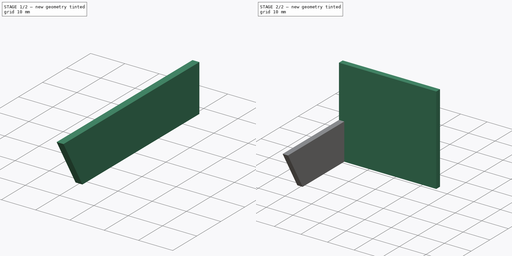
[diagram: build sequence overview — one tinted view per stage of 2, left to right]
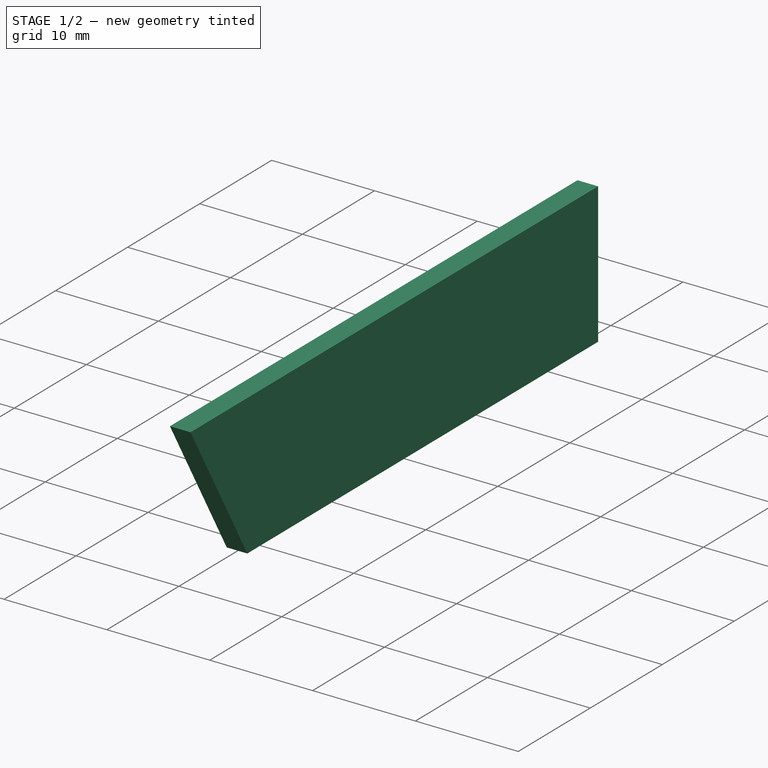
[diagram: stage 1 of 2 — iso view after this stage's code; geometry added in this stage tinted green]
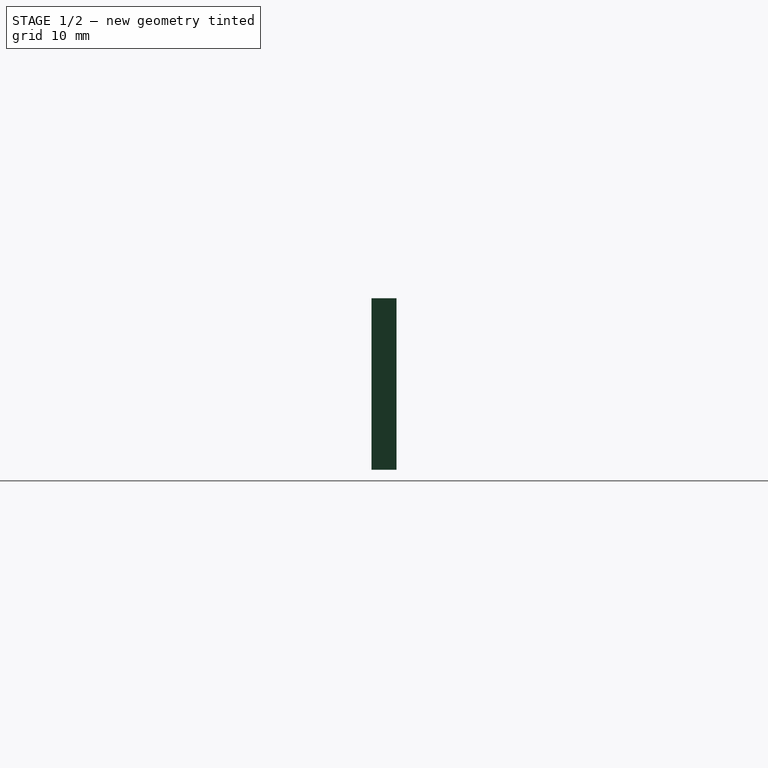
[diagram: stage 1 of 2 — front view after this stage's code; geometry added in this stage tinted green]
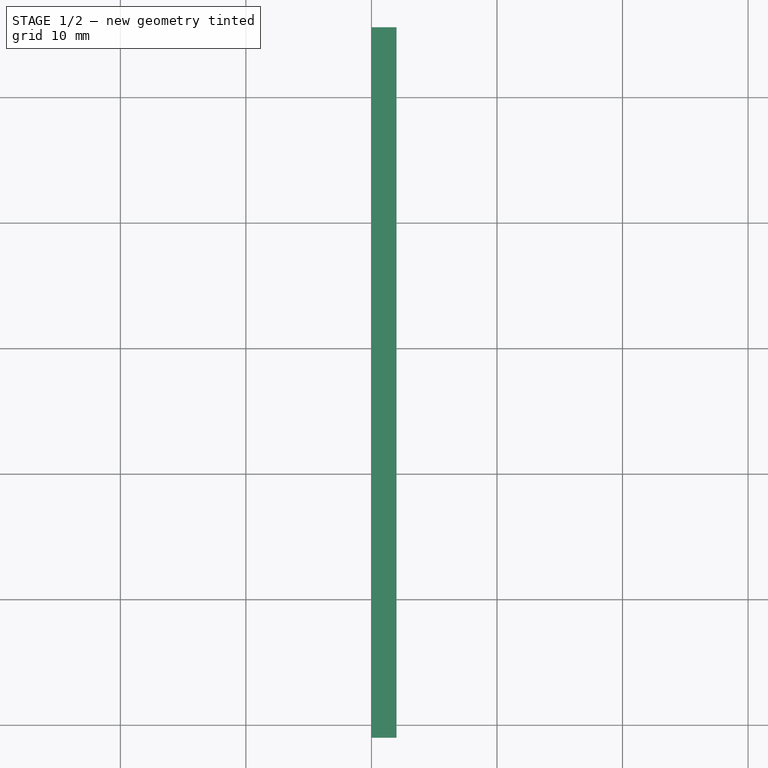
[diagram: stage 1 of 2 — top view after this stage's code; geometry added in this stage tinted green]
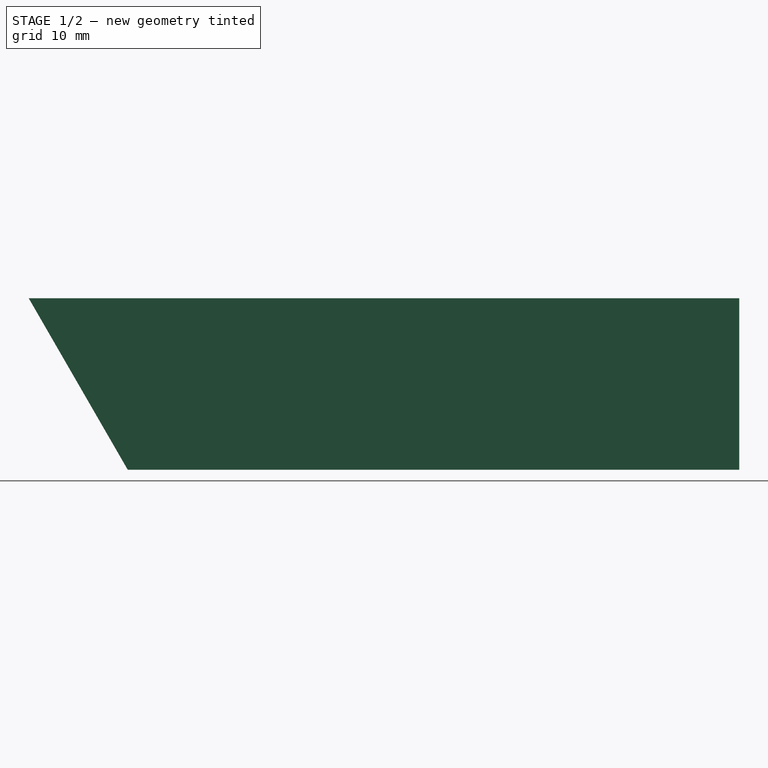
[diagram: stage 1 of 2 — right view after this stage's code; geometry added in this stage tinted green]
FCSTD DOCUMENT  (FreeCAD 1.0R39109 (Git))
Label: 01_Tray_Divider_v4
License: All rights reserved
LicenseURL: https://en.wikipedia.org/wiki/All_rights_reserved
objects: Sketcher::SketchObject×3, PartDesign::Pad×2, PartDesign::Body×1
note: 13 computed .brp shape members not serialized (recipe doc carries the construction recipe); baked Part::Feature solids carry a one-line shape summary decoded from their .brp

FEATURE [Sketcher::SketchObject] Sketch
  ArcFitTolerance = 1e-06
  AttachmentSupport = -> [YZ_Plane001]
  FullyConstrained = true
  MakeInternals = false
  MapMode = 5
  Placement = pos=(0,0,0) rot=(0.57735,0.57735,0.57735;2.0944rad)
  sketch-geometry (4):
    g0: LineSegment StartX=-23.355 StartY=0 StartZ=0 EndX=25.355 EndY=0 EndZ=0
    g1: LineSegment StartX=25.355 StartY=0 StartZ=0 EndX=25.355 EndY=13.6659 EndZ=0
    g2: LineSegment StartX=25.355 StartY=13.6659 StartZ=0 EndX=-31.245 EndY=13.6659 EndZ=0
    g3: LineSegment StartX=-31.245 StartY=13.6659 StartZ=0 EndX=-23.355 EndY=0 EndZ=0
  constraints (12):
    c: Horizontal(g0)
    c: Coincident(g0,g1)
    c: Vertical(g1)
    c: Coincident(g1,g2)
    c: Horizontal(g2)
    c: Coincident(g2,g3)
    c: Coincident(g3,g0)
    c: Distance(g2) = 56.6
    c: Distance(g0) = 48.71
    c: Angle(g0,g3) = 2.0944
    c: DistanceX(g0,g-1) = 23.355
    c: DistanceY(g-1,g0) = 0
FEATURE [PartDesign::Pad] Pad
  Direction = (1,0,0)
  Length = 2
  Length2 = 10
  Placement = pos=(0,0,0) rot=(1,1,1;2.0944rad)
  Profile = -> Sketch
  ReferenceAxis = -> Sketch [N_Axis]
  Refine = true
  Suppressed = false
  Type = 0
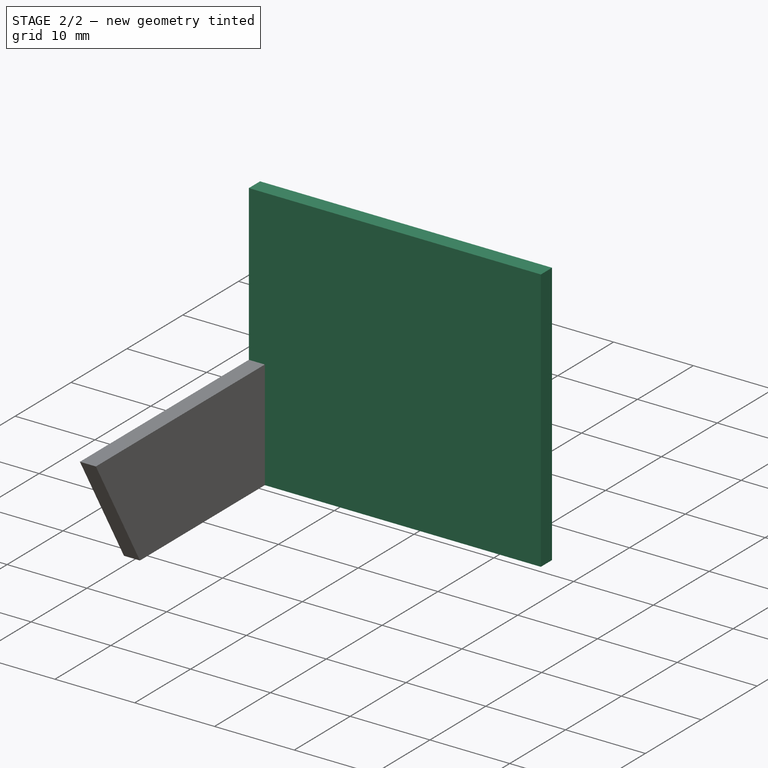
[diagram: stage 2 of 2 — iso view after this stage's code; geometry added in this stage tinted green]
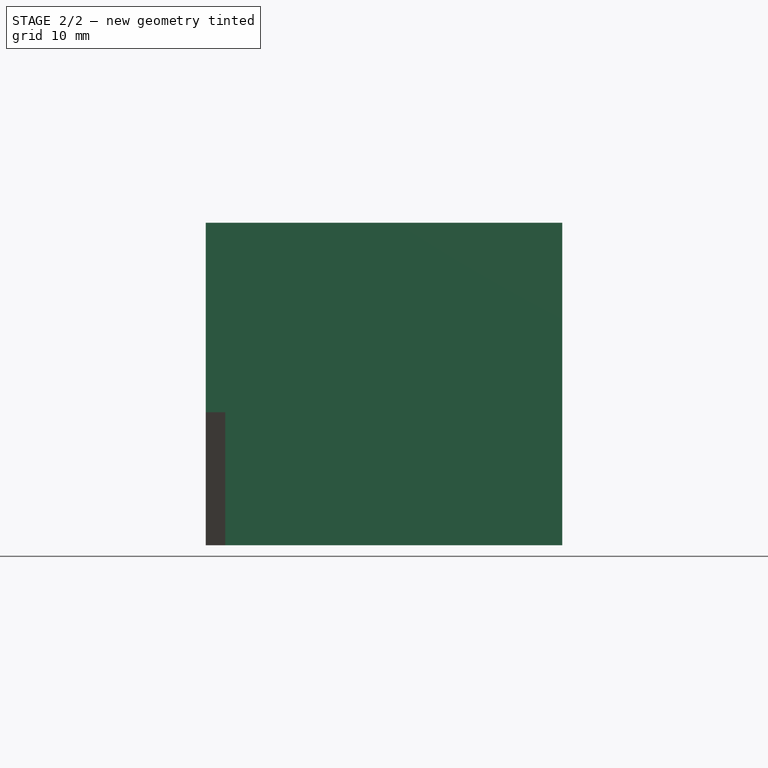
[diagram: stage 2 of 2 — front view after this stage's code; geometry added in this stage tinted green]
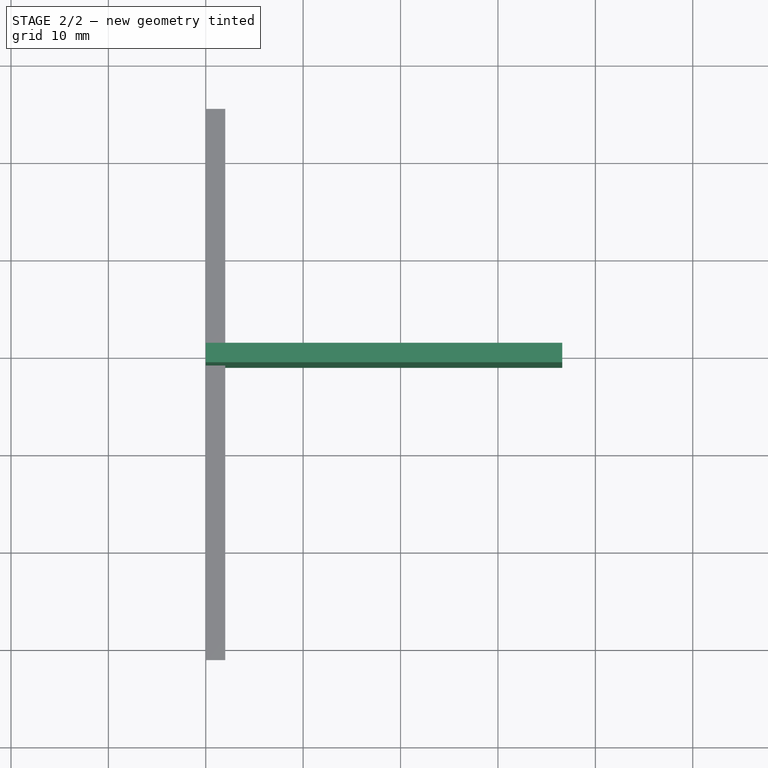
[diagram: stage 2 of 2 — top view after this stage's code; geometry added in this stage tinted green]
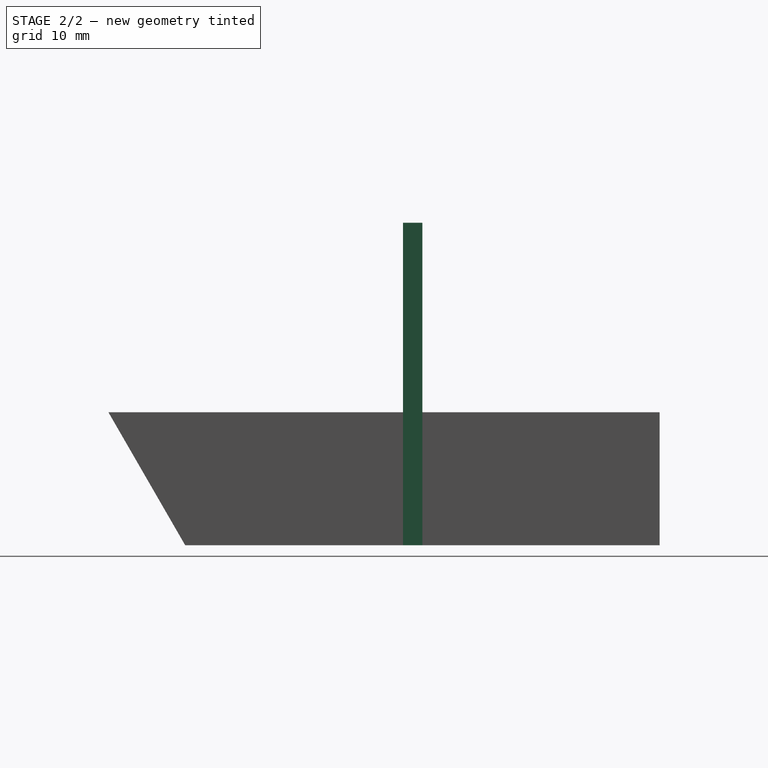
[diagram: stage 2 of 2 — right view after this stage's code; geometry added in this stage tinted green]
FEATURE [Sketcher::SketchObject] Sketch001
  ArcFitTolerance = 1e-06
  AttachmentSupport = -> [Pad]
  FullyConstrained = true
  MakeInternals = false
  MapMode = 5
  Placement = pos=(2,0,0) rot=(0.57735,0.57735,0.57735;2.0944rad)
  sketch-geometry (4):
    g0: LineSegment StartX=1 StartY=33.12 StartZ=0 EndX=-1 EndY=33.12 EndZ=0
    g1: LineSegment StartX=-1 StartY=33.12 StartZ=0 EndX=-1 EndY=0 EndZ=0
    g2: LineSegment StartX=-1 StartY=0 StartZ=0 EndX=1 EndY=0 EndZ=0
    g3: LineSegment StartX=1 StartY=0 StartZ=0 EndX=1 EndY=33.12 EndZ=0
  constraints (12):
    c: Coincident(g0,g1)
    c: Coincident(g1,g2)
    c: Coincident(g2,g3)
    c: Coincident(g3,g0)
    c: Horizontal(g0)
    c: Horizontal(g2)
    c: Vertical(g1)
    c: Vertical(g3)
    c: Distance(g1,g3) = 2
    c: Distance(g0,g2) = 33.12
    c: DistanceX(g1,g-1) = 1
    c: DistanceY(g-1,g2) = 0
FEATURE [PartDesign::Pad] Pad001
  BaseFeature = -> Pad
  Direction = (1,0,0)
  Length = 34.6
  Length2 = 2
  Placement = pos=(0,0,0) rot=(1,1,1;2.0944rad)
  Profile = -> Sketch001
  ReferenceAxis = -> Sketch001 [N_Axis]
  Refine = true
  Suppressed = false
  Type = 4
FEATURE [Sketcher::SketchObject] Sketch002
  ArcFitTolerance = 1e-06
  AttachmentSupport = -> [Pad001]
  FullyConstrained = true
  MakeInternals = false
  MapMode = 5
  Placement = pos=(0,3e-15,13.6659) rot=(0,0,-1;1.5708rad)
  sketch-geometry (4):
    g0: LineSegment StartX=-23.355 StartY=2 StartZ=0 EndX=-23.355 EndY=0 EndZ=0
    g1: LineSegment StartX=-23.355 StartY=0 StartZ=0 EndX=23.355 EndY=0 EndZ=0
    g2: LineSegment StartX=23.355 StartY=0 StartZ=0 EndX=23.355 EndY=2 EndZ=0
    g3: LineSegment StartX=23.355 StartY=2 StartZ=0 EndX=-23.355 EndY=2 EndZ=0
  constraints (12):
    c: Coincident(g0,g1)
    c: Coincident(g1,g2)
    c: Coincident(g2,g3)
    c: Coincident(g3,g0)
    c: Vertical(g0)
    c: Vertical(g2)
    c: Horizontal(g1)
    c: Horizontal(g3)
    c: Distance(g0,g2) = 46.71
    c: Distance(g1,g3) = 2
    c: DistanceY(g-1,g0) = 0
    c: DistanceX(g0,g-1) = 23.355
FEATURE [PartDesign::Body] Body001  label="Body"
  AllowCompound = false
  Group = -> [Sketch,Pad,Sketch001,Pad001,Sketch002]
  Origin = -> Origin001
  Tip = -> Pad001
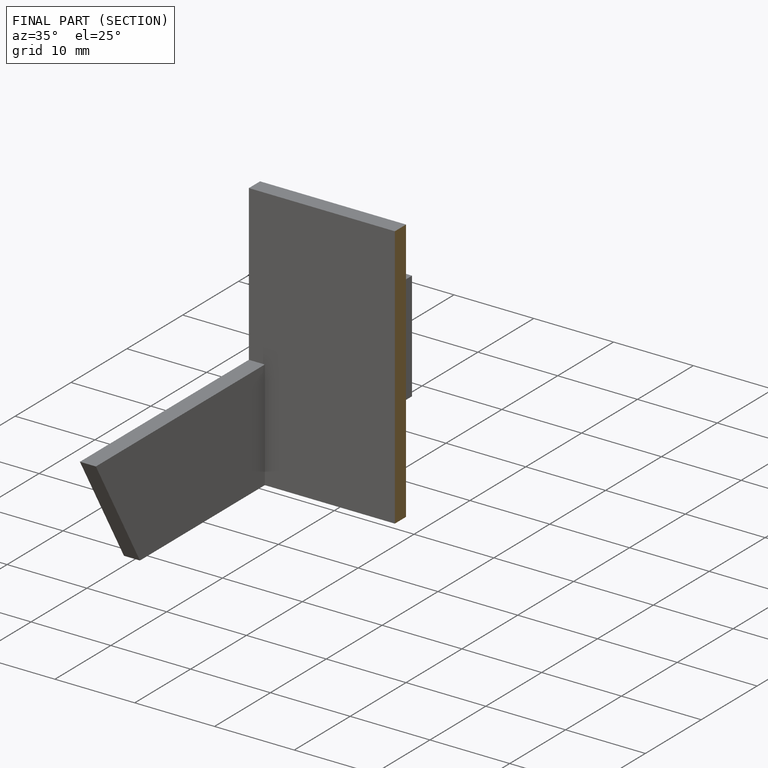
[diagram: finished part — half-section view (interior)]
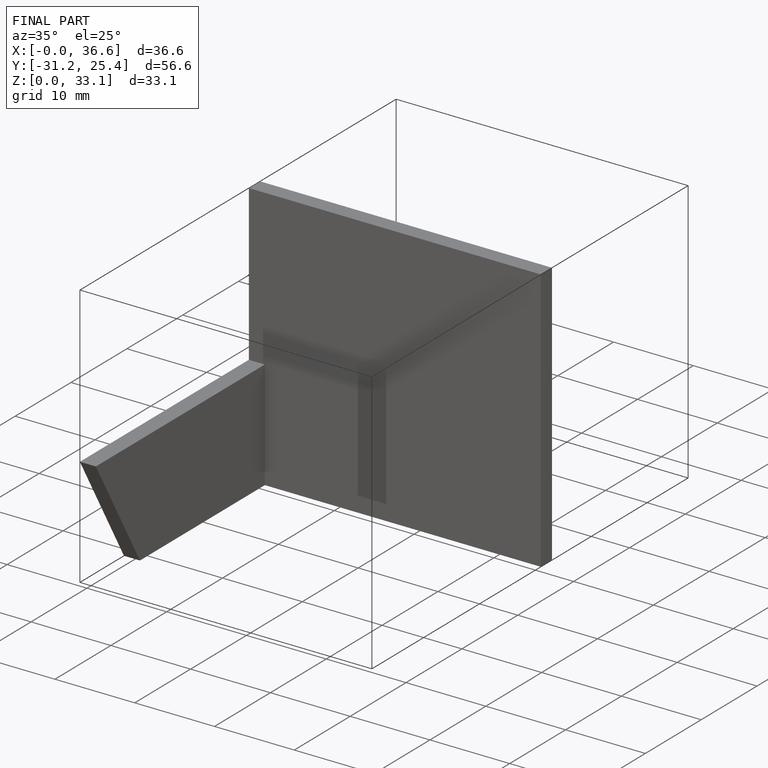
[diagram: finished part — iso view with bounding-box wireframe]
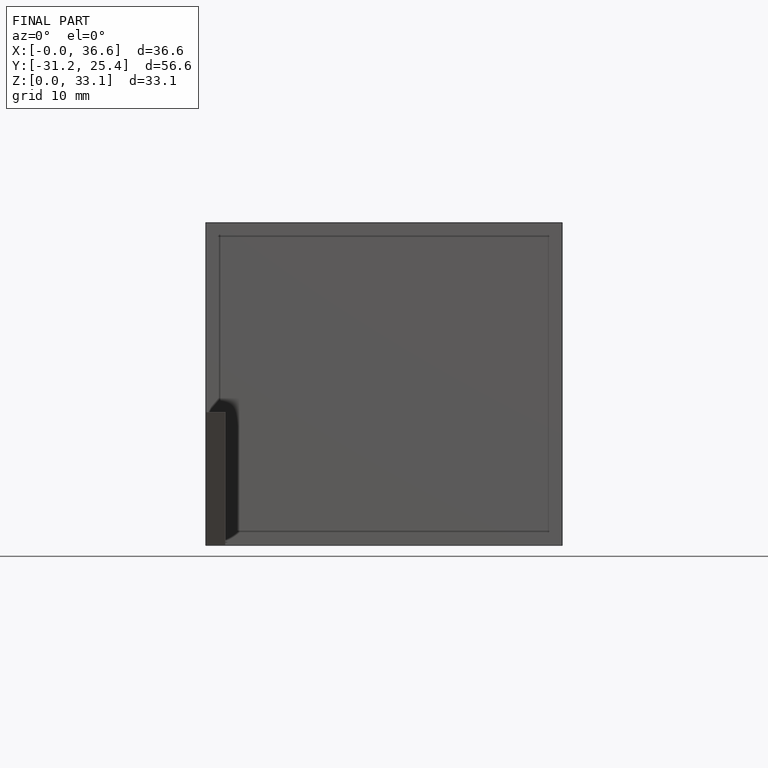
[diagram: finished part — front view with bounding-box wireframe]
